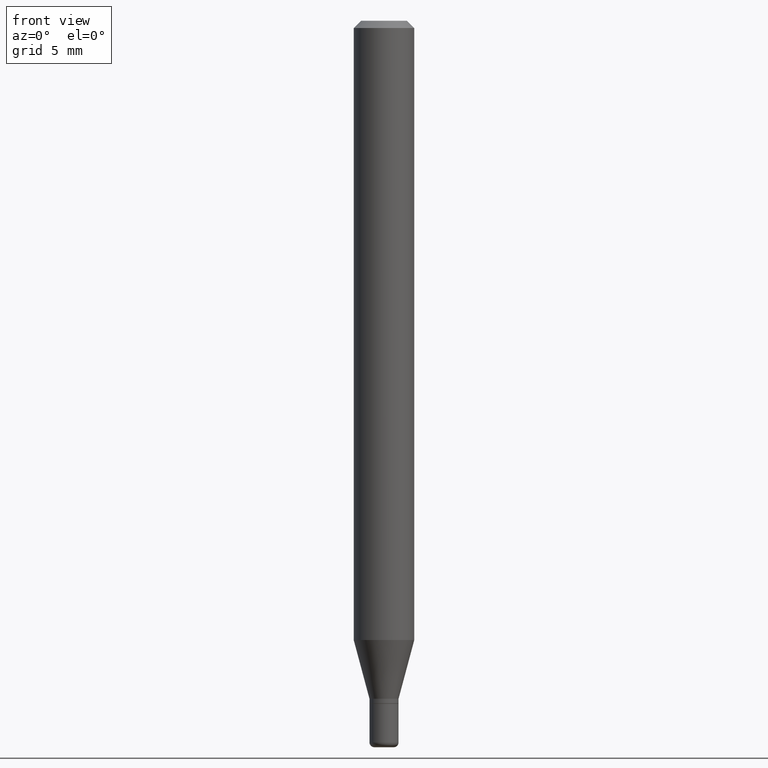
[diagram: clean part render]
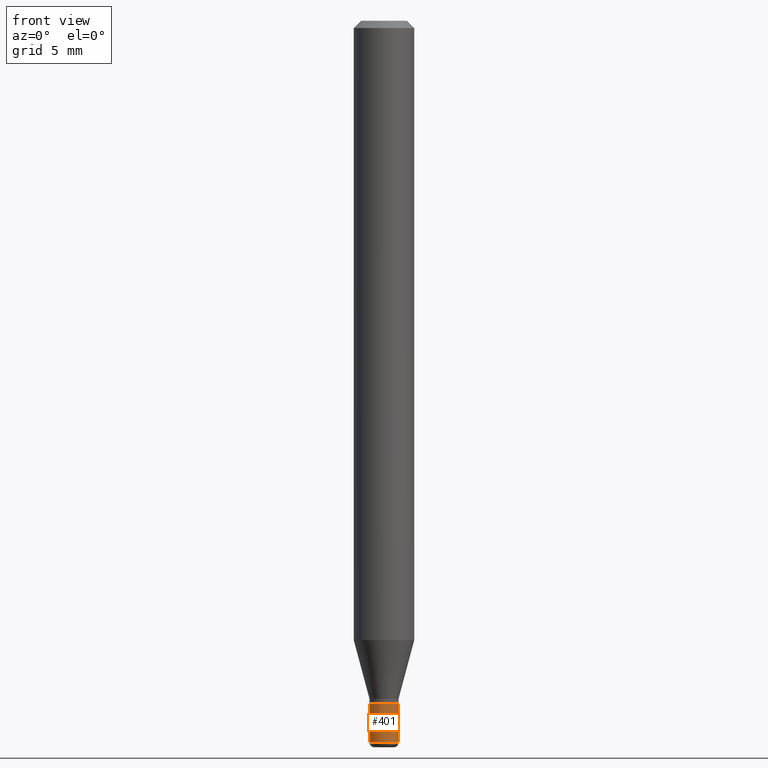
[diagram: same view with one face highlighted and labeled with its STEP entity id]
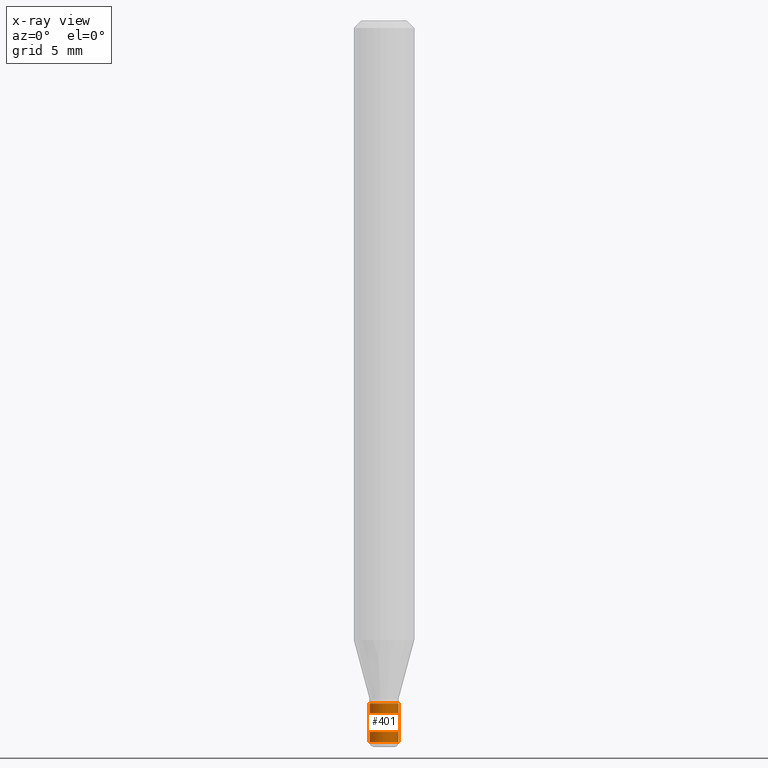
[diagram: x-ray of the same camera — body ghosted, the highlighted face saturated]
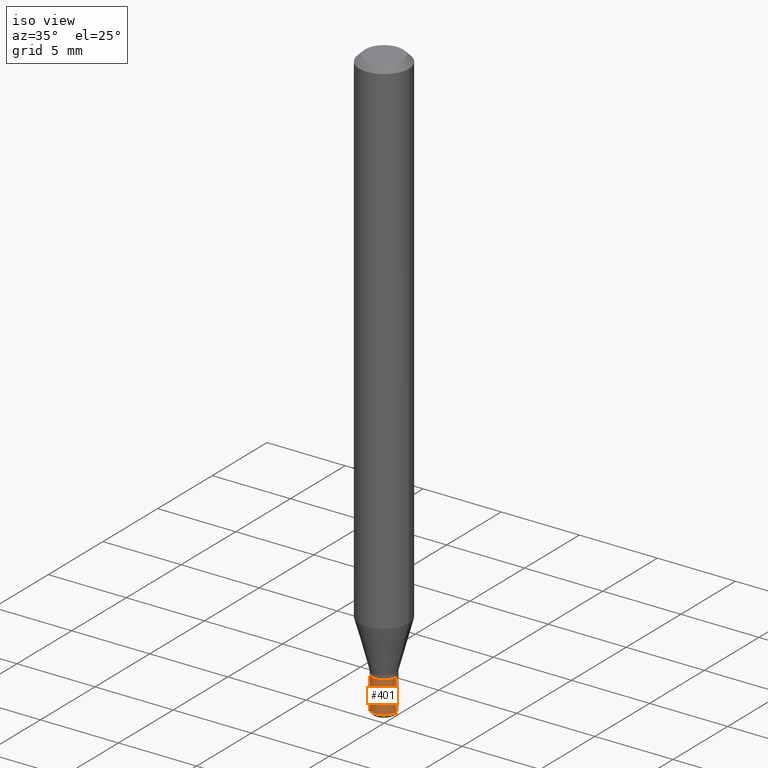
[diagram: same view with one face highlighted and labeled with its STEP entity id]
A machine part, front view. The second image highlights one B-rep face of the part: STEP entity #401.
The next image is the same camera in x-ray: the body ghosted, the highlighted face saturated — about 0% of this face is hidden behind the body in this view.
A second angle (iso view) of the same face is appended — the face is thin or edge-on in the first view.
In plain terms, the highlighted cylindrical surface (edge-blend (fillet) strip) has radius 0.762 mm, axis along (-0, 0, 1).
Its self-contained STEP definition (entity closure, byte-faithful):
#2 = DIRECTION ( 'NONE',  ( 1.000000000000000000, -6.982962677686281699E-15, 0.000000000000000000 ) ) ;
#6 = DIRECTION ( 'NONE',  ( -2.445468806185136877E-29, 3.491481338843145188E-15, 1.000000000000000000 ) ) ;
#18 = CARTESIAN_POINT ( 'NONE',  ( -0.02999999999999999542, -4.849485120594531264E-15, -1.409999999999999920 ) ) ;
#27 = CARTESIAN_POINT ( 'NONE',  ( 0.02999999999999999889, -5.132477568099423229E-15, -1.409999999999999920 ) ) ;
#58 = AXIS2_PLACEMENT_3D ( 'NONE', #65, #190, #100 ) ;
#60 = CARTESIAN_POINT ( 'NONE',  ( 0.02999999999999997113, -2.094888803305877992E-16, 1.462853032738779302E-30 ) ) ;
#65 = CARTESIAN_POINT ( 'NONE',  ( 3.448111016721042669E-29, -4.922988687768835701E-15, -1.409999999999999920 ) ) ;
#100 = DIRECTION ( 'NONE',  ( 1.000000000000000000, -6.982962677686268288E-15, 0.000000000000000000 ) ) ;
#111 = CARTESIAN_POINT ( 'NONE',  ( -0.02999999999999997113, 2.131628207280298507E-16, -1.475680527076470305E-30 ) ) ;
#137 = EDGE_CURVE ( 'NONE', #496, #349, #433, .T. ) ;
#139 = VECTOR ( 'NONE', #219, 39.37007874015748143 ) ;
#147 = VECTOR ( 'NONE', #6, 39.37007874015748143 ) ;
#164 = ORIENTED_EDGE ( 'NONE', *, *, #229, .T. ) ;
#165 = CARTESIAN_POINT ( 'NONE',  ( -0.02999999999999994338, -4.849485120594531264E-15, -1.490000000000000213 ) ) ;
#168 = ORIENTED_EDGE ( 'NONE', *, *, #411, .F. ) ;
#190 = DIRECTION ( 'NONE',  ( -2.445468806185136597E-29, 3.491481338843145583E-15, 1.000000000000000000 ) ) ;
#202 = CARTESIAN_POINT ( 'NONE',  ( 3.643748521215853910E-29, -5.202307194876288105E-15, -1.490000000000000213 ) ) ;
#219 = DIRECTION ( 'NONE',  ( -2.445468806185136877E-29, 3.491481338843145188E-15, 1.000000000000000000 ) ) ;
#229 = EDGE_CURVE ( 'NONE', #347, #496, #357, .T. ) ;
#265 = CARTESIAN_POINT ( 'NONE',  ( 0.02999999999999994338, -5.411796075206875633E-15, -1.490000000000000213 ) ) ;
#266 = CYLINDRICAL_SURFACE ( 'NONE', #300, 0.02999999999999997113 ) ;
#293 = VERTEX_POINT ( 'NONE', #18 ) ;
#297 = ORIENTED_EDGE ( 'NONE', *, *, #137, .T. ) ;
#300 = AXIS2_PLACEMENT_3D ( 'NONE', #461, #354, #507 ) ;
#322 = EDGE_CURVE ( 'NONE', #347, #293, #373, .T. ) ;
#347 = VERTEX_POINT ( 'NONE', #165 ) ;
#349 = VERTEX_POINT ( 'NONE', #27 ) ;
#354 = DIRECTION ( 'NONE',  ( -2.445468806185136597E-29, 3.491481338843145583E-15, 1.000000000000000000 ) ) ;
#357 = CIRCLE ( 'NONE', #395, 0.02999999999999994338 ) ;
#369 = DIRECTION ( 'NONE',  ( -2.445468806185136597E-29, 3.491481338843145583E-15, 1.000000000000000000 ) ) ;
#373 = LINE ( 'NONE', #111, #147 ) ;
#384 = CIRCLE ( 'NONE', #58, 0.02999999999999999889 ) ;
#395 = AXIS2_PLACEMENT_3D ( 'NONE', #202, #369, #2 ) ;
#398 = FACE_OUTER_BOUND ( 'NONE', #405, .T. ) ;
#401 = ADVANCED_FACE ( 'NONE', ( #398 ), #266, .T. ) ;
#405 = EDGE_LOOP ( 'NONE', ( #478, #164, #297, #168 ) ) ;
#411 = EDGE_CURVE ( 'NONE', #293, #349, #384, .T. ) ;
#433 = LINE ( 'NONE', #60, #139 ) ;
#461 = CARTESIAN_POINT ( 'NONE',  ( 0.000000000000000000, 0.000000000000000000, 0.000000000000000000 ) ) ;
#478 = ORIENTED_EDGE ( 'NONE', *, *, #322, .F. ) ;
#496 = VERTEX_POINT ( 'NONE', #265 ) ;
#507 = DIRECTION ( 'NONE',  ( 1.000000000000000000, -6.982962677686266711E-15, 4.876176775795935793E-29 ) ) ;